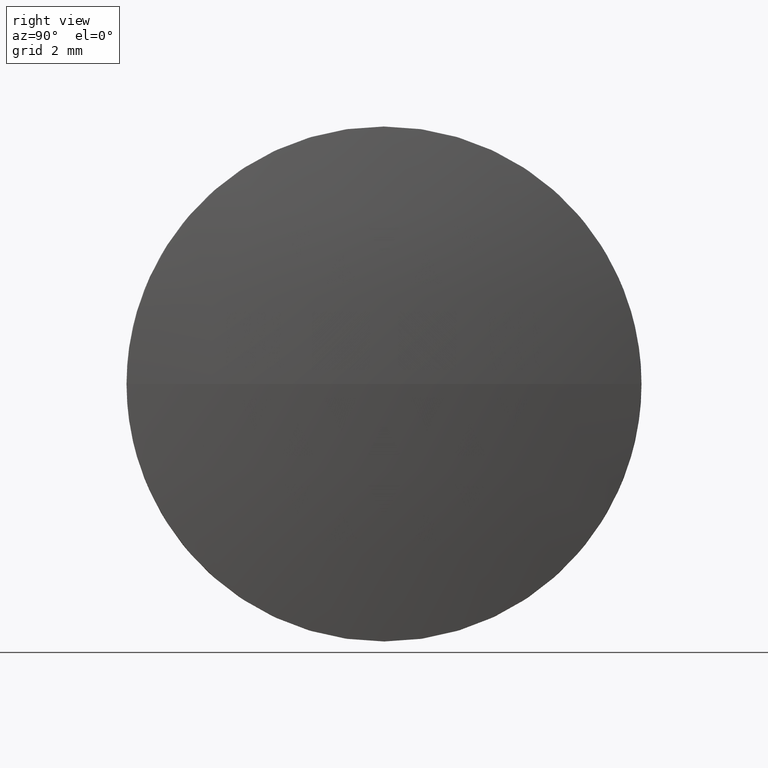
[diagram: clean part render]
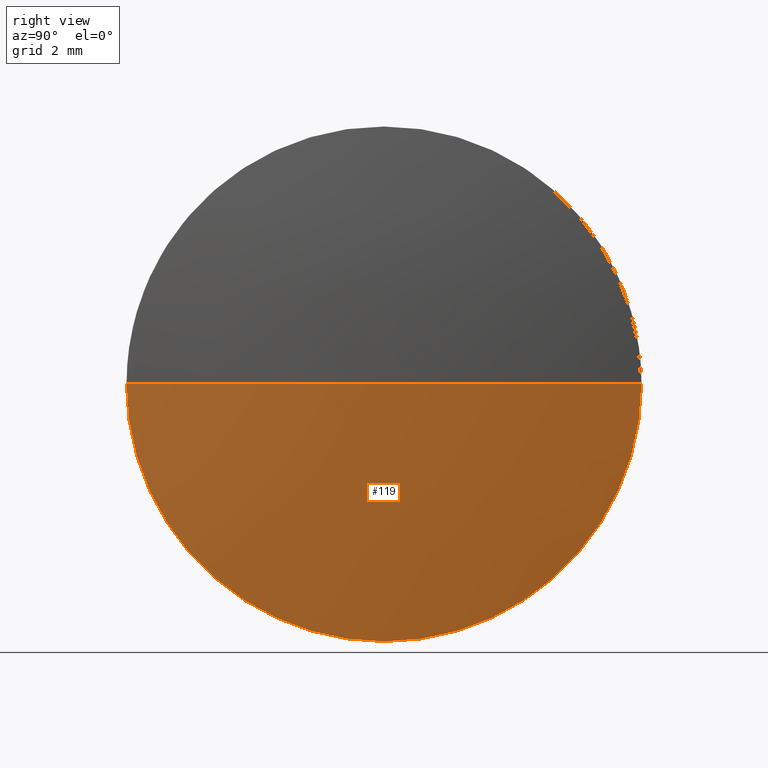
[diagram: same view with one face highlighted and labeled with its STEP entity id]
A machine part, right view. The second image highlights one B-rep face of the part: STEP entity #119.
In plain terms, the highlighted spherical surface has radius 51.9229 mm.
Its self-contained STEP definition (entity closure, byte-faithful):
#3 = CARTESIAN_POINT ( 'NONE',  ( 410.7592352837468800, 156.5683746678373000, 0.0000000000000000000 ) ) ;
#7 = CARTESIAN_POINT ( 'NONE',  ( 462.0621385095531700, 148.5683746678372800, -9.797174393178857200E-016 ) ) ;
#8 = CARTESIAN_POINT ( 'NONE',  ( 462.6821385095531700, 156.5683746678373000, 0.0000000000000000000 ) ) ;
#10 = VERTEX_POINT ( 'NONE', #7 ) ;
#13 = CARTESIAN_POINT ( 'NONE',  ( 462.0621385095531700, 156.5683746678373000, 0.0000000000000000000 ) ) ;
#15 = AXIS2_PLACEMENT_3D ( 'NONE', #3, #33, #47 ) ;
#16 = SPHERICAL_SURFACE ( 'NONE', #178, 51.92290322580633700 ) ;
#23 = DIRECTION ( 'NONE',  ( 0.0000000000000000000, 1.224646799147353200E-016, -1.000000000000000000 ) ) ;
#24 = VERTEX_POINT ( 'NONE', #8 ) ;
#28 = DIRECTION ( 'NONE',  ( -0.0000000000000000000, 0.0000000000000000000, -1.000000000000000000 ) ) ;
#33 = DIRECTION ( 'NONE',  ( -0.0000000000000000000, 0.0000000000000000000, 1.000000000000000000 ) ) ;
#39 = DIRECTION ( 'NONE',  ( 0.0000000000000000000, 1.000000000000000000, 0.0000000000000000000 ) ) ;
#45 = DIRECTION ( 'NONE',  ( 0.0000000000000000000, 1.000000000000000000, 1.224646799147353200E-016 ) ) ;
#47 = DIRECTION ( 'NONE',  ( 1.000000000000000000, 0.0000000000000000000, 0.0000000000000000000 ) ) ;
#60 = DIRECTION ( 'NONE',  ( 0.0000000000000000000, 0.0000000000000000000, 1.000000000000000000 ) ) ;
#69 = ORIENTED_EDGE ( 'NONE', *, *, #128, .F. ) ;
#74 = CARTESIAN_POINT ( 'NONE',  ( 462.0621385095531700, 156.5683746678373000, 0.0000000000000000000 ) ) ;
#78 = ORIENTED_EDGE ( 'NONE', *, *, #132, .F. ) ;
#84 = CIRCLE ( 'NONE', #86, 51.92290322580633700 ) ;
#86 = AXIS2_PLACEMENT_3D ( 'NONE', #165, #23, #45 ) ;
#88 = CARTESIAN_POINT ( 'NONE',  ( 410.7592352837468800, 156.5683746678373000, 0.0000000000000000000 ) ) ;
#90 = ORIENTED_EDGE ( 'NONE', *, *, #153, .F. ) ;
#91 = EDGE_LOOP ( 'NONE', ( #78, #105, #69, #90 ) ) ;
#99 = VERTEX_POINT ( 'NONE', #100 ) ;
#100 = CARTESIAN_POINT ( 'NONE',  ( 462.0621385095531700, 164.5683746678373000, 0.0000000000000000000 ) ) ;
#105 = ORIENTED_EDGE ( 'NONE', *, *, #160, .T. ) ;
#115 = AXIS2_PLACEMENT_3D ( 'NONE', #13, #151, #60 ) ;
#119 = ADVANCED_FACE ( 'NONE', ( #183 ), #16, .T. ) ;
#122 = AXIS2_PLACEMENT_3D ( 'NONE', #74, #179, #150 ) ;
#125 = CIRCLE ( 'NONE', #115, 8.000000000000007100 ) ;
#126 = CIRCLE ( 'NONE', #15, 51.92290322580633700 ) ;
#128 = EDGE_CURVE ( 'NONE', #176, #10, #125, .T. ) ;
#132 = EDGE_CURVE ( 'NONE', #24, #99, #126, .T. ) ;
#134 = CIRCLE ( 'NONE', #122, 8.000000000000007100 ) ;
#146 = CARTESIAN_POINT ( 'NONE',  ( 462.0621385095531700, 156.5683746678373000, -8.000000000000007100 ) ) ;
#150 = DIRECTION ( 'NONE',  ( 0.0000000000000000000, 0.0000000000000000000, 1.000000000000000000 ) ) ;
#151 = DIRECTION ( 'NONE',  ( -1.000000000000000000, -0.0000000000000000000, -0.0000000000000000000 ) ) ;
#153 = EDGE_CURVE ( 'NONE', #99, #176, #134, .T. ) ;
#160 = EDGE_CURVE ( 'NONE', #24, #10, #84, .T. ) ;
#165 = CARTESIAN_POINT ( 'NONE',  ( 410.7592352837468800, 156.5683746678373000, 0.0000000000000000000 ) ) ;
#176 = VERTEX_POINT ( 'NONE', #146 ) ;
#178 = AXIS2_PLACEMENT_3D ( 'NONE', #88, #28, #39 ) ;
#179 = DIRECTION ( 'NONE',  ( -1.000000000000000000, -0.0000000000000000000, -0.0000000000000000000 ) ) ;
#183 = FACE_OUTER_BOUND ( 'NONE', #91, .T. ) ;